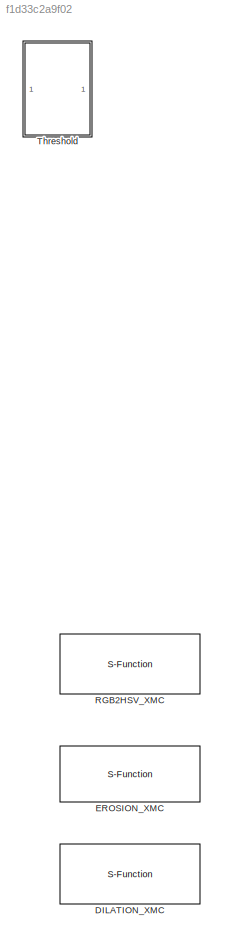
MODEL slx_f1d33c2a9f02
KIND library
CONFIG AbsTol = auto
CONFIG EnableMultiTasking = on
CONFIG FixedStep = auto
CONFIG MaxStep = auto
CONFIG MinStep = auto
CONFIG RelTol = 1e-3
CONFIG SampleTimeConstraint = Unconstrained
CONFIG SolverName = VariableStepAuto
CONFIG StartTime = 0.0
CONFIG StopTime = 10.0
BLOCK [S-Function] DILATION_XMC
  EnableBusSupport = off
  FunctionName = XilinxLibrary
  InitFcn = xmcSameAsRefBlock(gcbh);
  Parameters = 16 maskwsvariables
  PreCopyFcn = xmcWarnForDuplicateLibraryImportFunctionBlock()
  SFcnIsStateOwnerBlock = off
  SFunctionDeploymentMode = off
BLOCK [S-Function] EROSION_XMC
  EnableBusSupport = off
  FunctionName = XilinxLibrary
  InitFcn = xmcSameAsRefBlock(gcbh);
  Parameters = 16 maskwsvariables
  PreCopyFcn = xmcWarnForDuplicateLibraryImportFunctionBlock()
  SFcnIsStateOwnerBlock = off
  SFunctionDeploymentMode = off
BLOCK [S-Function] RGB2HSV_XMC
  EnableBusSupport = off
  FunctionName = XilinxLibrary
  InitFcn = xmcSameAsRefBlock(gcbh);
  Parameters = 16 maskwsvariables
  PreCopyFcn = xmcWarnForDuplicateLibraryImportFunctionBlock()
  SFcnIsStateOwnerBlock = off
  SFunctionDeploymentMode = off
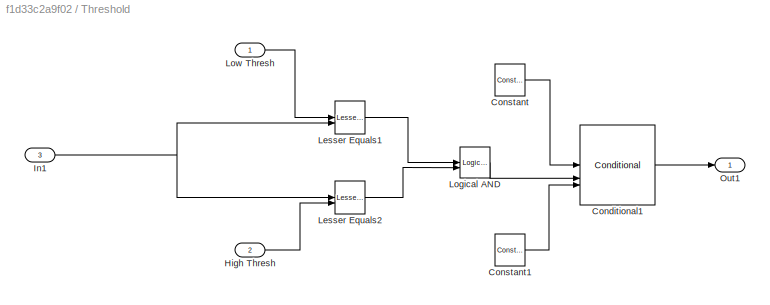
BLOCK [SubSystem] Threshold
BLOCK [Reference] Threshold/Conditional1  REF=hlsBasic/Conditional
  SourceBlock = hlsBasic/Conditional
  SourceType = Conditional Operator
BLOCK [Reference] Threshold/Constant  REF=hlsBasic/Constant
  SourceBlock = hlsBasic/Constant
  SourceType = Constant
BLOCK [Reference] Threshold/Constant1  REF=hlsBasic/Constant
  SourceBlock = hlsBasic/Constant
  SourceType = Constant
BLOCK [Inport] Threshold/High Thresh
  Port = 2
BLOCK [Inport] Threshold/In1
  Port = 3
BLOCK [Reference] Threshold/Lesser Equals1  REF=hlsBasic/Lesser Equals
  SourceBlock = hlsBasic/Lesser Equals
  SourceType = lesser and equal
BLOCK [Reference] Threshold/Lesser Equals2  REF=hlsBasic/Lesser Equals
  SourceBlock = hlsBasic/Lesser Equals
  SourceType = lesser and equal
BLOCK [Reference] Threshold/Logical AND  REF=hlsBasic/Logical AND
  SourceBlock = hlsBasic/Logical AND
  SourceType = Logical AND
BLOCK [Inport] Threshold/Low Thresh
BLOCK [Outport] Threshold/Out1
LINE Threshold/Conditional1:1 -> Threshold/Out1:1
LINE Threshold/Constant1:1 -> Threshold/Conditional1:3
LINE Threshold/Constant:1 -> Threshold/Conditional1:1
LINE Threshold/High Thresh:1 -> Threshold/Lesser Equals2:2
NET Threshold/In1:1 -> Threshold/Lesser Equals1:2, Threshold/Lesser Equals2:1
LINE Threshold/Lesser Equals1:1 -> Threshold/Logical AND:1
LINE Threshold/Lesser Equals2:1 -> Threshold/Logical AND:2
LINE Threshold/Logical AND:1 -> Threshold/Conditional1:2
LINE Threshold/Low Thresh:1 -> Threshold/Lesser Equals1:1
note: NET lines group one-source signal fan-out (src -> all destinations, sorted); 1:1 wires keep LINE
